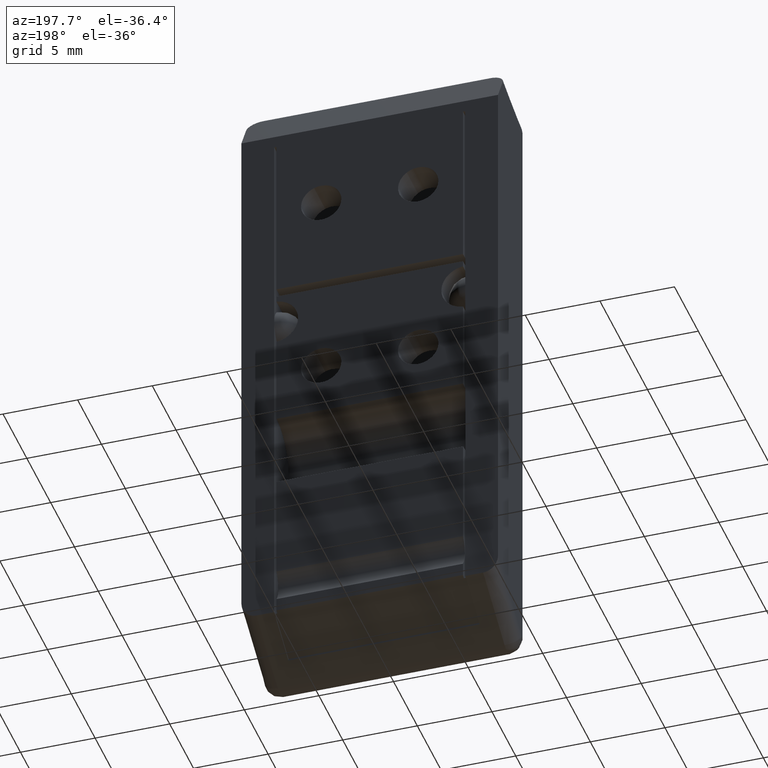
[diagram: clean part render]
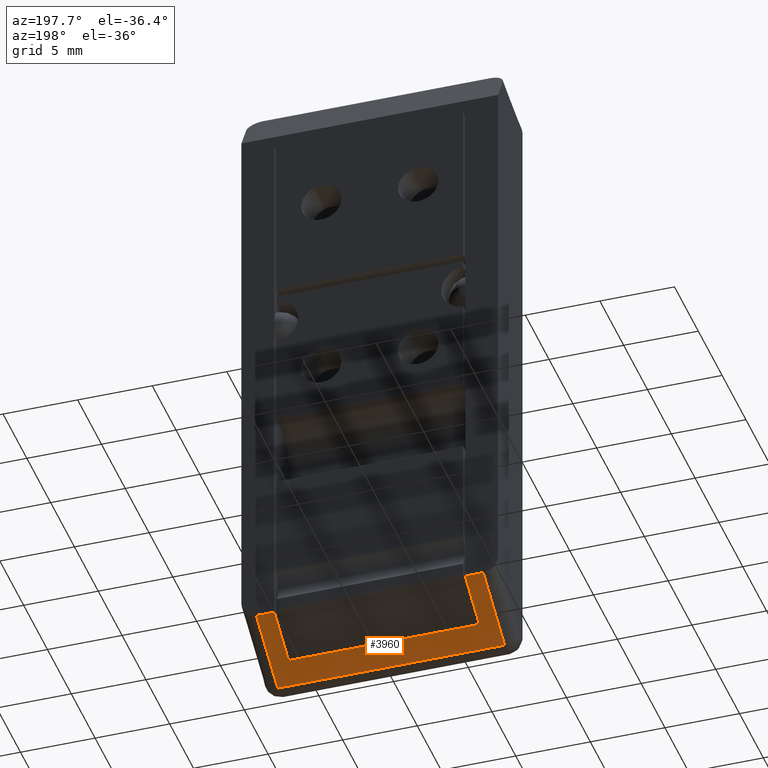
[diagram: same view with one face highlighted and labeled with its STEP entity id]
A machine part, auxiliary view. The second image highlights one B-rep face of the part: STEP entity #3960.
In plain terms, the highlighted face is a freeform B-spline surface patch.
Its self-contained STEP definition (entity closure, byte-faithful):
#2246=CARTESIAN_POINT('',(-6.400000000000000,-3.0,1.000000000000066));
#2247=VERTEX_POINT('',#2246);
#2260=CARTESIAN_POINT('',(6.400000000000000,-3.0,1.000000000000066));
#2261=VERTEX_POINT('',#2260);
#2267=CARTESIAN_POINT('',(6.400000000000000,-3.0,1.000000000000066));
#2268=CARTESIAN_POINT('',(-6.400000000000000,-3.0,1.000000000000066));
#2269=QUASI_UNIFORM_CURVE('',1,(#2267,#2268),.UNSPECIFIED.,.F.,.U.);
#2270=EDGE_CURVE('',#2261,#2247,#2269,.T.);
#3305=CARTESIAN_POINT('',(-7.600000000000000,0.0,2.732000000000000));
#3306=VERTEX_POINT('',#3305);
#3322=CARTESIAN_POINT('',(-7.600000000000000,-4.500011000282360,0.133993649170419));
#3323=VERTEX_POINT('',#3322);
#3324=CARTESIAN_POINT('',(-7.600000000000000,-4.500011000282360,0.133993649170419));
#3325=CARTESIAN_POINT('',(-7.600000000000000,0.0,2.732000000000000));
#3326=QUASI_UNIFORM_CURVE('',1,(#3324,#3325),.UNSPECIFIED.,.F.,.U.);
#3327=EDGE_CURVE('',#3323,#3306,#3326,.T.);
#3424=CARTESIAN_POINT('',(7.600000000000000,-4.500011000282360,0.133993649170419));
#3425=VERTEX_POINT('',#3424);
#3449=CARTESIAN_POINT('',(7.600000000000000,-4.500011000282360,0.133993649170419));
#3450=CARTESIAN_POINT('',(-7.600000000000000,-4.500011000282360,0.133993649170419));
#3451=QUASI_UNIFORM_CURVE('',1,(#3449,#3450),.UNSPECIFIED.,.F.,.U.);
#3452=EDGE_CURVE('',#3425,#3323,#3451,.T.);
#3630=CARTESIAN_POINT('',(7.600000000000000,0.0,2.732000000000000));
#3631=VERTEX_POINT('',#3630);
#3651=CARTESIAN_POINT('',(7.600000000000000,0.0,2.732000000000000));
#3652=CARTESIAN_POINT('',(7.600000000000000,-4.500011000282360,0.133993649170419));
#3653=QUASI_UNIFORM_CURVE('',1,(#3651,#3652),.UNSPECIFIED.,.F.,.U.);
#3654=EDGE_CURVE('',#3631,#3425,#3653,.T.);
#3925=CARTESIAN_POINT('',(-8.359239970539452,-4.724786541024567,0.004223236981919));
#3926=CARTESIAN_POINT('',(-8.359239970539452,0.224775661441911,2.861770481872458));
#3927=CARTESIAN_POINT('',(8.359240378235221,-4.724786541024567,0.004223236981919));
#3928=CARTESIAN_POINT('',(8.359240378235221,0.224775661441911,2.861770481872458));
#3929=B_SPLINE_SURFACE_WITH_KNOTS('',1,1,((#3925,#3927),(#3926,#3928)),.UNSPECIFIED.,.F.,.F.,.U.,(2,2),(2,2),(0.0,5.715220227853544),(0.0,16.718480348774669),.UNSPECIFIED.);
#3930=CARTESIAN_POINT('',(6.400000000000000,0.0,2.732000000000000));
#3931=VERTEX_POINT('',#3930);
#3932=CARTESIAN_POINT('',(6.400000000000000,-3.0,1.000000000000066));
#3933=CARTESIAN_POINT('',(6.400000000000000,0.0,2.732000000000000));
#3934=QUASI_UNIFORM_CURVE('',1,(#3932,#3933),.UNSPECIFIED.,.F.,.U.);
#3935=EDGE_CURVE('',#2261,#3931,#3934,.T.);
#3936=ORIENTED_EDGE('',*,*,#3935,.T.);
#3937=CARTESIAN_POINT('',(7.600000000000000,0.0,2.732000000000000));
#3938=CARTESIAN_POINT('',(6.400000000000000,0.0,2.732000000000000));
#3939=QUASI_UNIFORM_CURVE('',1,(#3937,#3938),.UNSPECIFIED.,.F.,.U.);
#3940=EDGE_CURVE('',#3631,#3931,#3939,.T.);
#3941=ORIENTED_EDGE('',*,*,#3940,.F.);
#3942=ORIENTED_EDGE('',*,*,#3654,.T.);
#3943=ORIENTED_EDGE('',*,*,#3452,.T.);
#3944=ORIENTED_EDGE('',*,*,#3327,.T.);
#3945=CARTESIAN_POINT('',(-6.400000000000000,0.0,2.732000000000000));
#3946=VERTEX_POINT('',#3945);
#3947=CARTESIAN_POINT('',(-6.400000000000000,0.0,2.732000000000000));
#3948=CARTESIAN_POINT('',(-7.600000000000000,0.0,2.732000000000000));
#3949=QUASI_UNIFORM_CURVE('',1,(#3947,#3948),.UNSPECIFIED.,.F.,.U.);
#3950=EDGE_CURVE('',#3946,#3306,#3949,.T.);
#3951=ORIENTED_EDGE('',*,*,#3950,.F.);
#3952=CARTESIAN_POINT('',(-6.400000000000000,-3.0,1.000000000000066));
#3953=CARTESIAN_POINT('',(-6.400000000000000,0.0,2.732000000000000));
#3954=QUASI_UNIFORM_CURVE('',1,(#3952,#3953),.UNSPECIFIED.,.F.,.U.);
#3955=EDGE_CURVE('',#2247,#3946,#3954,.T.);
#3956=ORIENTED_EDGE('',*,*,#3955,.F.);
#3957=ORIENTED_EDGE('',*,*,#2270,.F.);
#3958=EDGE_LOOP('',(#3936,#3941,#3942,#3943,#3944,#3951,#3956,#3957));
#3959=FACE_OUTER_BOUND('',#3958,.T.);
#3960=ADVANCED_FACE('',(#3959),#3929,.T.);